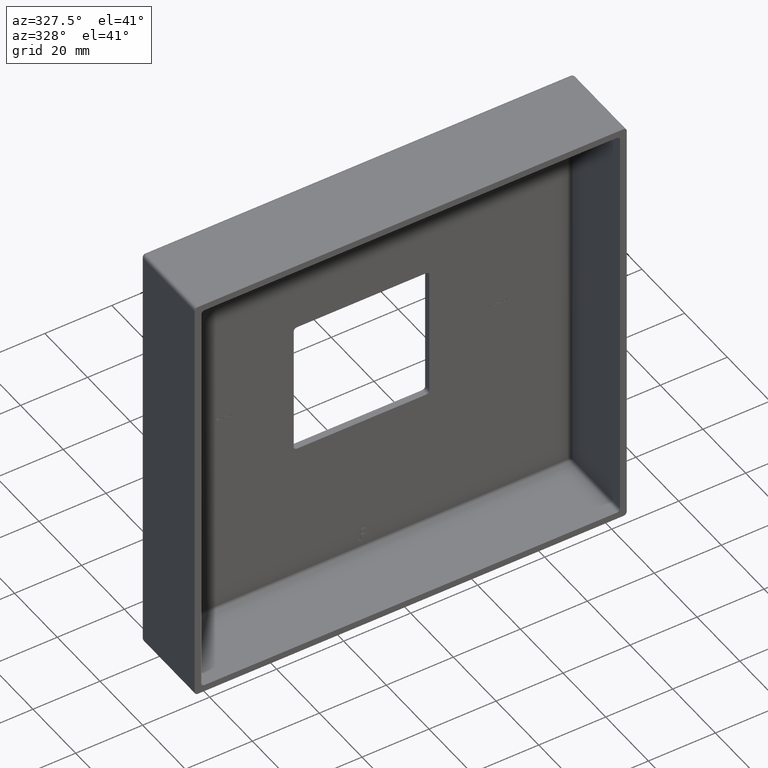
[diagram: clean part render]
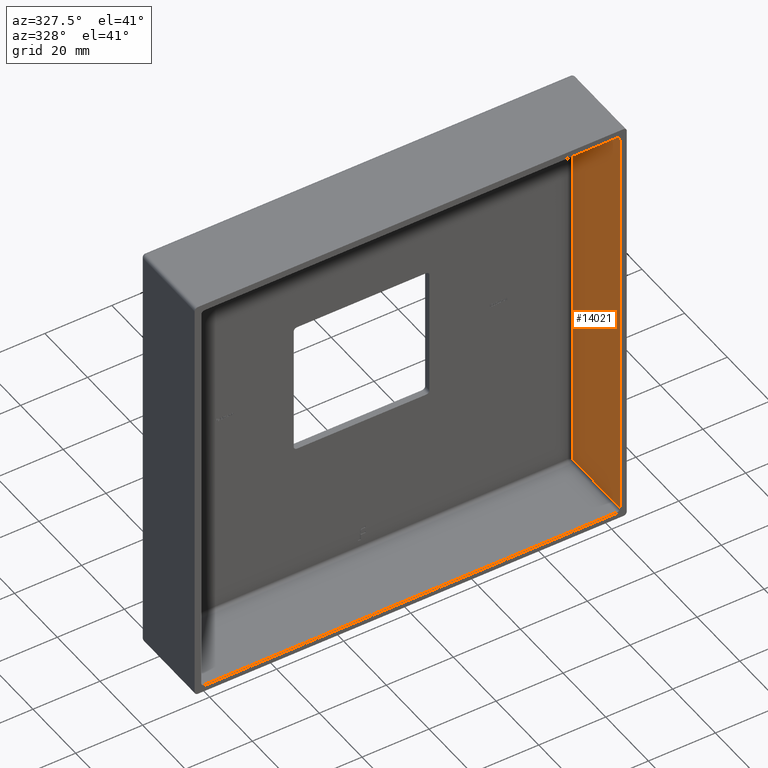
[diagram: same view with one face highlighted and labeled with its STEP entity id]
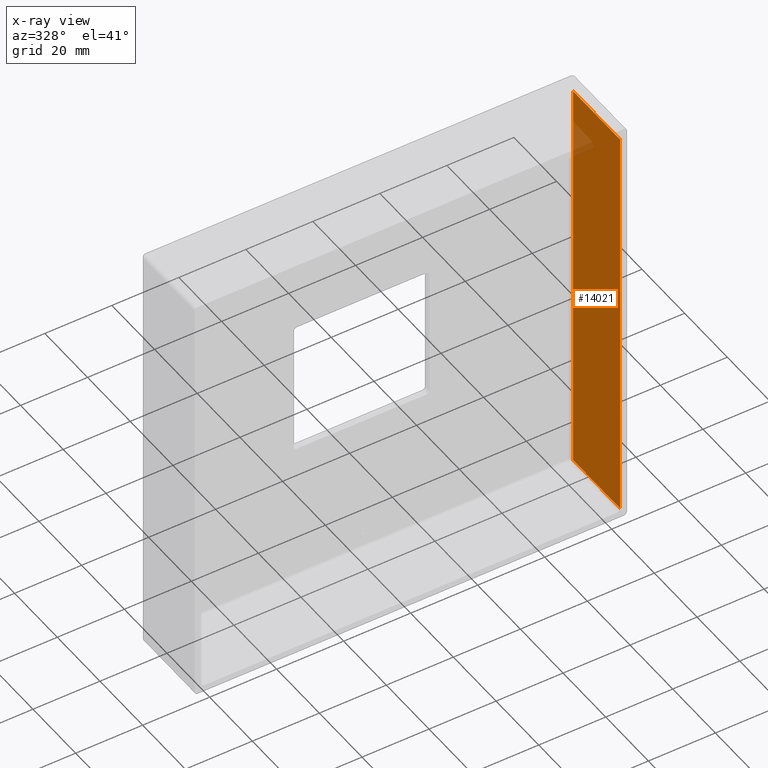
[diagram: x-ray of the same camera — body ghosted, the highlighted face saturated]
A machine part, auxiliary view. The second image highlights one B-rep face of the part: STEP entity #14021.
The next image is the same camera in x-ray: the body ghosted, the highlighted face saturated — about 2% of this face is hidden behind the body in this view.
In plain terms, the highlighted planar face has unit normal (-1, 0, 0).
Its self-contained STEP definition (entity closure, byte-faithful):
#459 = EDGE_LOOP ( 'NONE', ( #12961, #13692, #6080, #9778 ) ) ;
#981 = CARTESIAN_POINT ( 'NONE',  ( 62.50000000000000000, 22.00000000000000000, -64.49999999999997158 ) ) ;
#1258 = DIRECTION ( 'NONE',  ( 0.000000000000000000, 0.000000000000000000, -1.000000000000000000 ) ) ;
#1305 = EDGE_CURVE ( 'NONE', #2207, #13902, #10781, .T. ) ;
#2156 = DIRECTION ( 'NONE',  ( 0.000000000000000000, 0.000000000000000000, -1.000000000000000000 ) ) ;
#2207 = VERTEX_POINT ( 'NONE', #3058 ) ;
#2476 = CARTESIAN_POINT ( 'NONE',  ( 62.50000000000000000, 0.000000000000000000, -64.49999999999997158 ) ) ;
#2552 = DIRECTION ( 'NONE',  ( -1.000000000000000000, 0.000000000000000000, 0.000000000000000000 ) ) ;
#3058 = CARTESIAN_POINT ( 'NONE',  ( 62.50000000000000000, 22.00000000000000000, 61.50000000000000000 ) ) ;
#3500 = VECTOR ( 'NONE', #5841, 1000.000000000000000 ) ;
#4115 = VECTOR ( 'NONE', #13221, 1000.000000000000000 ) ;
#4865 = DIRECTION ( 'NONE',  ( 0.000000000000000000, 0.000000000000000000, 1.000000000000000000 ) ) ;
#4961 = PLANE ( 'NONE',  #8087 ) ;
#5636 = CARTESIAN_POINT ( 'NONE',  ( 62.50000000000000000, 0.000000000000000000, -61.49999999999997158 ) ) ;
#5841 = DIRECTION ( 'NONE',  ( 0.000000000000000000, -1.000000000000000000, 0.000000000000000000 ) ) ;
#6080 = ORIENTED_EDGE ( 'NONE', *, *, #6286, .F. ) ;
#6286 = EDGE_CURVE ( 'NONE', #14202, #10077, #8631, .T. ) ;
#6290 = VECTOR ( 'NONE', #2156, 1000.000000000000000 ) ;
#6816 = CARTESIAN_POINT ( 'NONE',  ( 62.50000000000000000, 22.00000000000000000, -61.49999999999997158 ) ) ;
#8087 = AXIS2_PLACEMENT_3D ( 'NONE', #8220, #2552, #4865 ) ;
#8220 = CARTESIAN_POINT ( 'NONE',  ( 62.50000000000000000, 25.00000000000000000, -64.49999999999997158 ) ) ;
#8631 = LINE ( 'NONE', #2476, #12743 ) ;
#9534 = EDGE_CURVE ( 'NONE', #14202, #2207, #9683, .T. ) ;
#9683 = LINE ( 'NONE', #12094, #4115 ) ;
#9778 = ORIENTED_EDGE ( 'NONE', *, *, #9534, .T. ) ;
#10077 = VERTEX_POINT ( 'NONE', #11583 ) ;
#10781 = LINE ( 'NONE', #981, #6290 ) ;
#11583 = CARTESIAN_POINT ( 'NONE',  ( 62.50000000000000000, 0.000000000000000000, -61.49999999999997158 ) ) ;
#12094 = CARTESIAN_POINT ( 'NONE',  ( 62.50000000000000000, 23.00000000000000000, 61.50000000000000000 ) ) ;
#12107 = CARTESIAN_POINT ( 'NONE',  ( 62.50000000000000000, 0.000000000000000000, 61.50000000000000000 ) ) ;
#12743 = VECTOR ( 'NONE', #1258, 1000.000000000000000 ) ;
#12961 = ORIENTED_EDGE ( 'NONE', *, *, #1305, .T. ) ;
#13221 = DIRECTION ( 'NONE',  ( -0.000000000000000000, 1.000000000000000000, -0.000000000000000000 ) ) ;
#13692 = ORIENTED_EDGE ( 'NONE', *, *, #14774, .T. ) ;
#13704 = FACE_OUTER_BOUND ( 'NONE', #459, .T. ) ;
#13902 = VERTEX_POINT ( 'NONE', #6816 ) ;
#14021 = ADVANCED_FACE ( 'NONE', ( #13704 ), #4961, .T. ) ;
#14202 = VERTEX_POINT ( 'NONE', #12107 ) ;
#14774 = EDGE_CURVE ( 'NONE', #13902, #10077, #14796, .T. ) ;
#14796 = LINE ( 'NONE', #5636, #3500 ) ;